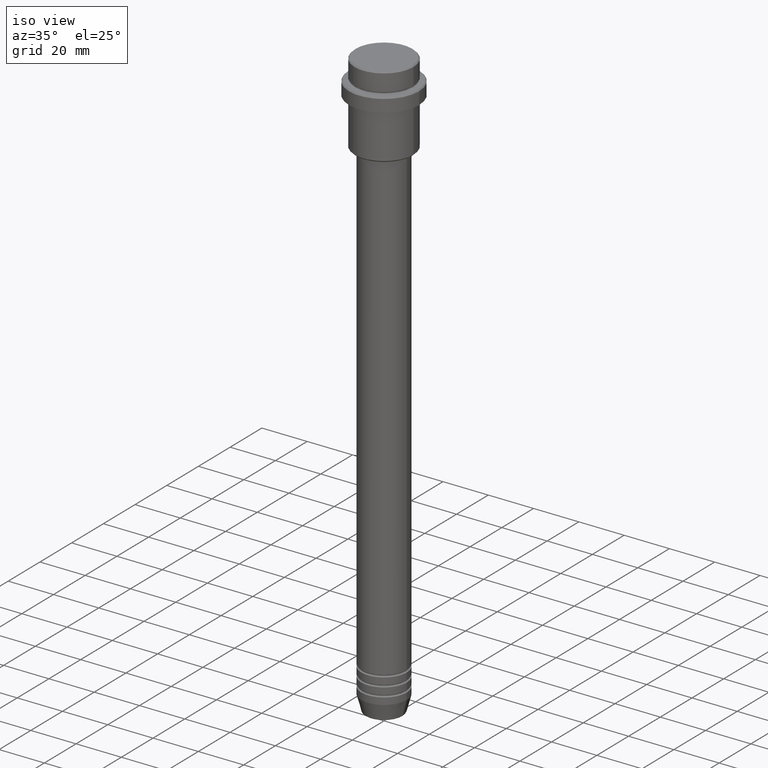
[diagram: clean part render]
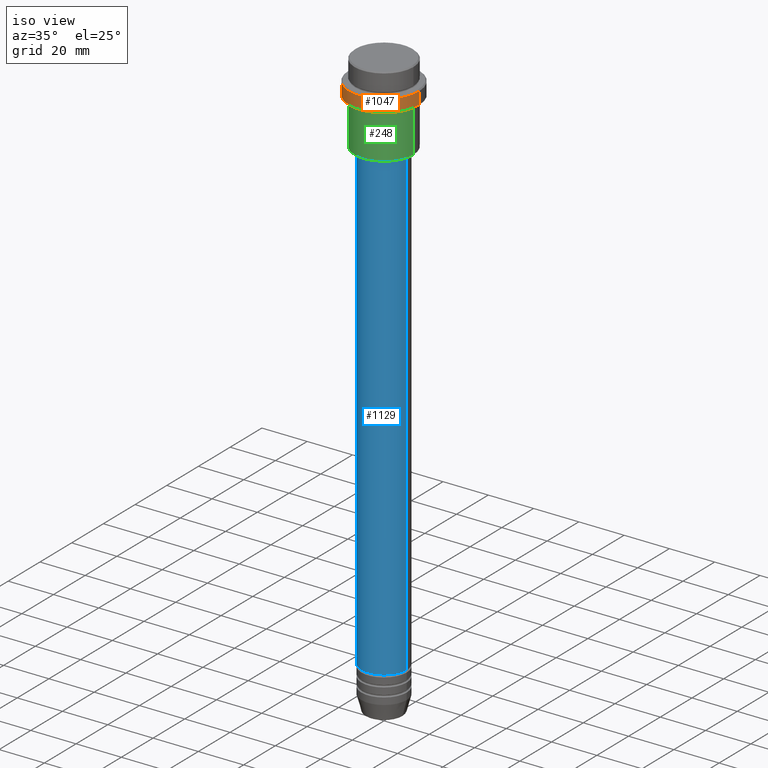
[diagram: same view with three faces highlighted in distinct colors, each labeled with its STEP entity id]
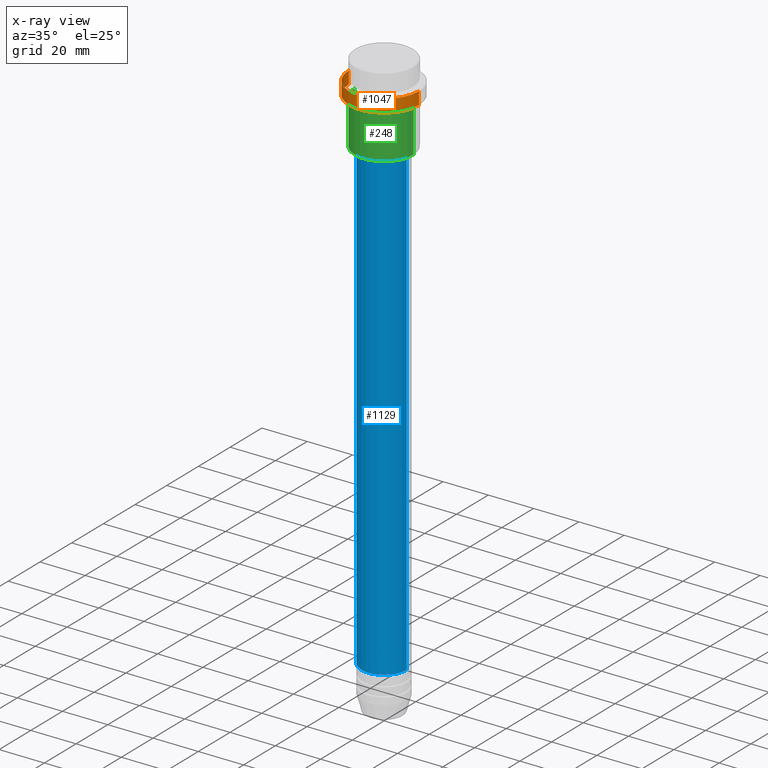
[diagram: x-ray of the same camera — body ghosted, the three highlighted faces saturated]
A machine part, iso view with three faces highlighted in distinct colors.
The next image is the same camera in x-ray (body ghosted, the three faces saturated) — at least one of them is partly hidden behind the body in this view.
Their STEP definitions:

[orange] entity #1047 — the highlighted cylindrical surface (partial cylindrical patch) has radius 15.5 mm, axis along (-0, -0, 1).
#96 = EDGE_LOOP ( 'NONE', ( #1191, #839, #1043, #1379 ) ) ;
#267 = CARTESIAN_POINT ( 'NONE',  ( 15.50000000000000000, 0.000000000000000000, -15.00000000000000000 ) ) ;
#305 = AXIS2_PLACEMENT_3D ( 'NONE', #672, #1247, #789 ) ;
#319 = EDGE_CURVE ( 'NONE', #1301, #425, #1221, .T. ) ;
#374 = FACE_OUTER_BOUND ( 'NONE', #96, .T. ) ;
#425 = VERTEX_POINT ( 'NONE', #1204 ) ;
#464 = CARTESIAN_POINT ( 'NONE',  ( -15.50000000000000000, 1.898202538678397557E-15, 0.000000000000000000 ) ) ;
#510 = AXIS2_PLACEMENT_3D ( 'NONE', #887, #1338, #696 ) ;
#566 = DIRECTION ( 'NONE',  ( -0.000000000000000000, -0.000000000000000000, 1.000000000000000000 ) ) ;
#639 = VECTOR ( 'NONE', #566, 1000.000000000000000 ) ;
#672 = CARTESIAN_POINT ( 'NONE',  ( 0.000000000000000000, 0.000000000000000000, -15.00000000000000000 ) ) ;
#683 = LINE ( 'NONE', #464, #1207 ) ;
#696 = DIRECTION ( 'NONE',  ( 1.000000000000000000, 0.000000000000000000, 0.000000000000000000 ) ) ;
#789 = DIRECTION ( 'NONE',  ( 1.000000000000000000, 0.000000000000000000, 0.000000000000000000 ) ) ;
#800 = EDGE_CURVE ( 'NONE', #425, #895, #813, .T. ) ;
#809 = CYLINDRICAL_SURFACE ( 'NONE', #510, 15.50000000000000000 ) ;
#813 = CIRCLE ( 'NONE', #1370, 15.50000000000000000 ) ;
#839 = ORIENTED_EDGE ( 'NONE', *, *, #1240, .T. ) ;
#841 = VERTEX_POINT ( 'NONE', #974 ) ;
#887 = CARTESIAN_POINT ( 'NONE',  ( 0.000000000000000000, 0.000000000000000000, 0.000000000000000000 ) ) ;
#895 = VERTEX_POINT ( 'NONE', #1192 ) ;
#933 = EDGE_CURVE ( 'NONE', #841, #895, #683, .T. ) ;
#974 = CARTESIAN_POINT ( 'NONE',  ( -15.50000000000000000, 1.898202538678397557E-15, -15.00000000000000000 ) ) ;
#1043 = ORIENTED_EDGE ( 'NONE', *, *, #319, .T. ) ;
#1047 = ADVANCED_FACE ( 'NONE', ( #374 ), #809, .T. ) ;
#1077 = DIRECTION ( 'NONE',  ( 1.000000000000000000, 0.000000000000000000, 0.000000000000000000 ) ) ;
#1111 = CARTESIAN_POINT ( 'NONE',  ( 15.50000000000000000, 0.000000000000000000, 0.000000000000000000 ) ) ;
#1170 = DIRECTION ( 'NONE',  ( 0.000000000000000000, 0.000000000000000000, -1.000000000000000000 ) ) ;
#1191 = ORIENTED_EDGE ( 'NONE', *, *, #933, .F. ) ;
#1192 = CARTESIAN_POINT ( 'NONE',  ( -15.50000000000000000, 1.898202538678397557E-15, -9.500000000000039080 ) ) ;
#1204 = CARTESIAN_POINT ( 'NONE',  ( 15.50000000000000000, 0.000000000000000000, -9.500000000000039080 ) ) ;
#1207 = VECTOR ( 'NONE', #1361, 1000.000000000000000 ) ;
#1221 = LINE ( 'NONE', #1111, #639 ) ;
#1240 = EDGE_CURVE ( 'NONE', #841, #1301, #1275, .T. ) ;
#1247 = DIRECTION ( 'NONE',  ( -0.000000000000000000, -0.000000000000000000, 1.000000000000000000 ) ) ;
#1275 = CIRCLE ( 'NONE', #305, 15.50000000000000000 ) ;
#1277 = CARTESIAN_POINT ( 'NONE',  ( 0.000000000000000000, 0.000000000000000000, -9.500000000000039080 ) ) ;
#1301 = VERTEX_POINT ( 'NONE', #267 ) ;
#1338 = DIRECTION ( 'NONE',  ( -0.000000000000000000, -0.000000000000000000, 1.000000000000000000 ) ) ;
#1361 = DIRECTION ( 'NONE',  ( -0.000000000000000000, -0.000000000000000000, 1.000000000000000000 ) ) ;
#1370 = AXIS2_PLACEMENT_3D ( 'NONE', #1277, #1170, #1077 ) ;
#1379 = ORIENTED_EDGE ( 'NONE', *, *, #800, .T. ) ;

[blue] entity #1129 — the highlighted cylindrical surface (edge-blend (fillet) strip) has radius 10 mm, axis along (-0, -0, 1).
#9 = DIRECTION ( 'NONE',  ( -0.000000000000000000, -0.000000000000000000, 1.000000000000000000 ) ) ;
#31 = CARTESIAN_POINT ( 'NONE',  ( 0.000000000000000000, 0.000000000000000000, 0.000000000000000000 ) ) ;
#81 = CARTESIAN_POINT ( 'NONE',  ( 10.00000000000000178, 0.000000000000000000, 0.000000000000000000 ) ) ;
#112 = CARTESIAN_POINT ( 'NONE',  ( -10.00000000000000178, 1.224646799147353454E-15, 0.000000000000000000 ) ) ;
#223 = VERTEX_POINT ( 'NONE', #978 ) ;
#230 = EDGE_CURVE ( 'NONE', #504, #421, #873, .T. ) ;
#232 = CARTESIAN_POINT ( 'NONE',  ( 0.000000000000000000, 0.000000000000000000, -241.9999999999998863 ) ) ;
#245 = DIRECTION ( 'NONE',  ( 1.000000000000000000, 0.000000000000000000, 0.000000000000000000 ) ) ;
#286 = CARTESIAN_POINT ( 'NONE',  ( -10.00000000000000000, 1.224646799147353256E-15, -241.9999999999998863 ) ) ;
#366 = DIRECTION ( 'NONE',  ( -0.000000000000000000, -0.000000000000000000, 1.000000000000000000 ) ) ;
#421 = VERTEX_POINT ( 'NONE', #674 ) ;
#469 = ORIENTED_EDGE ( 'NONE', *, *, #792, .T. ) ;
#488 = LINE ( 'NONE', #81, #1085 ) ;
#504 = VERTEX_POINT ( 'NONE', #286 ) ;
#549 = ORIENTED_EDGE ( 'NONE', *, *, #230, .T. ) ;
#551 = ORIENTED_EDGE ( 'NONE', *, *, #946, .F. ) ;
#574 = FACE_OUTER_BOUND ( 'NONE', #1042, .T. ) ;
#605 = VECTOR ( 'NONE', #9, 1000.000000000000000 ) ;
#632 = DIRECTION ( 'NONE',  ( 1.000000000000000000, 0.000000000000000000, 0.000000000000000000 ) ) ;
#650 = LINE ( 'NONE', #112, #605 ) ;
#674 = CARTESIAN_POINT ( 'NONE',  ( 10.00000000000000000, 0.000000000000000000, -241.9999999999998863 ) ) ;
#739 = AXIS2_PLACEMENT_3D ( 'NONE', #1229, #366, #245 ) ;
#745 = DIRECTION ( 'NONE',  ( -0.000000000000000000, -0.000000000000000000, 1.000000000000000000 ) ) ;
#792 = EDGE_CURVE ( 'NONE', #421, #945, #488, .T. ) ;
#845 = EDGE_CURVE ( 'NONE', #504, #223, #650, .T. ) ;
#873 = CIRCLE ( 'NONE', #1060, 10.00000000000000000 ) ;
#874 = ORIENTED_EDGE ( 'NONE', *, *, #845, .F. ) ;
#890 = CARTESIAN_POINT ( 'NONE',  ( 10.00000000000000178, 0.000000000000000000, -37.00000000000000711 ) ) ;
#911 = CYLINDRICAL_SURFACE ( 'NONE', #1297, 10.00000000000000178 ) ;
#945 = VERTEX_POINT ( 'NONE', #890 ) ;
#946 = EDGE_CURVE ( 'NONE', #223, #945, #1063, .T. ) ;
#978 = CARTESIAN_POINT ( 'NONE',  ( -10.00000000000000178, 1.224646799147353454E-15, -37.00000000000000711 ) ) ;
#1042 = EDGE_LOOP ( 'NONE', ( #874, #549, #469, #551 ) ) ;
#1060 = AXIS2_PLACEMENT_3D ( 'NONE', #232, #745, #632 ) ;
#1063 = CIRCLE ( 'NONE', #739, 10.00000000000000178 ) ;
#1085 = VECTOR ( 'NONE', #1396, 1000.000000000000000 ) ;
#1129 = ADVANCED_FACE ( 'NONE', ( #574 ), #911, .T. ) ;
#1229 = CARTESIAN_POINT ( 'NONE',  ( 0.000000000000000000, 0.000000000000000000, -37.00000000000000711 ) ) ;
#1297 = AXIS2_PLACEMENT_3D ( 'NONE', #31, #1346, #1359 ) ;
#1346 = DIRECTION ( 'NONE',  ( -0.000000000000000000, -0.000000000000000000, 1.000000000000000000 ) ) ;
#1359 = DIRECTION ( 'NONE',  ( 1.000000000000000000, 0.000000000000000000, 0.000000000000000000 ) ) ;
#1396 = DIRECTION ( 'NONE',  ( -0.000000000000000000, -0.000000000000000000, 1.000000000000000000 ) ) ;

[green] entity #248 — the highlighted cylindrical surface (edge-blend (fillet) strip) has radius 13 mm, axis along (-0, -0, 1).
#5 = ORIENTED_EDGE ( 'NONE', *, *, #145, .F. ) ;
#80 = AXIS2_PLACEMENT_3D ( 'NONE', #891, #361, #142 ) ;
#142 = DIRECTION ( 'NONE',  ( 1.000000000000000000, 0.000000000000000000, 0.000000000000000000 ) ) ;
#145 = EDGE_CURVE ( 'NONE', #932, #579, #764, .T. ) ;
#163 = CARTESIAN_POINT ( 'NONE',  ( 0.000000000000000000, 0.000000000000000000, -35.50000000000002842 ) ) ;
#246 = DIRECTION ( 'NONE',  ( -0.000000000000000000, -0.000000000000000000, 1.000000000000000000 ) ) ;
#248 = ADVANCED_FACE ( 'NONE', ( #857 ), #349, .T. ) ;
#278 = VECTOR ( 'NONE', #948, 1000.000000000000000 ) ;
#289 = EDGE_CURVE ( 'NONE', #849, #932, #1030, .T. ) ;
#331 = VECTOR ( 'NONE', #246, 1000.000000000000000 ) ;
#349 = CYLINDRICAL_SURFACE ( 'NONE', #80, 13.00000000000000000 ) ;
#360 = ORIENTED_EDGE ( 'NONE', *, *, #613, .T. ) ;
#361 = DIRECTION ( 'NONE',  ( -0.000000000000000000, -0.000000000000000000, 1.000000000000000000 ) ) ;
#399 = CARTESIAN_POINT ( 'NONE',  ( -13.00000000000000000, 1.592040838891559095E-15, -16.00000000000000000 ) ) ;
#414 = VERTEX_POINT ( 'NONE', #1324 ) ;
#442 = CARTESIAN_POINT ( 'NONE',  ( 13.00000000000000000, 0.000000000000000000, -16.00000000000000000 ) ) ;
#447 = CARTESIAN_POINT ( 'NONE',  ( -13.00000000000000000, 1.592040838891559095E-15, -35.50000000000002842 ) ) ;
#458 = CARTESIAN_POINT ( 'NONE',  ( -13.00000000000000000, 1.592040838891559095E-15, 0.000000000000000000 ) ) ;
#500 = EDGE_CURVE ( 'NONE', #849, #414, #622, .T. ) ;
#579 = VERTEX_POINT ( 'NONE', #442 ) ;
#613 = EDGE_CURVE ( 'NONE', #414, #579, #1125, .T. ) ;
#622 = CIRCLE ( 'NONE', #920, 13.00000000000000000 ) ;
#708 = ORIENTED_EDGE ( 'NONE', *, *, #500, .T. ) ;
#764 = CIRCLE ( 'NONE', #1395, 13.00000000000000000 ) ;
#825 = DIRECTION ( 'NONE',  ( -0.000000000000000000, -0.000000000000000000, 1.000000000000000000 ) ) ;
#849 = VERTEX_POINT ( 'NONE', #447 ) ;
#856 = ORIENTED_EDGE ( 'NONE', *, *, #289, .F. ) ;
#857 = FACE_OUTER_BOUND ( 'NONE', #1373, .T. ) ;
#866 = DIRECTION ( 'NONE',  ( -0.000000000000000000, -0.000000000000000000, 1.000000000000000000 ) ) ;
#891 = CARTESIAN_POINT ( 'NONE',  ( 0.000000000000000000, 0.000000000000000000, 0.000000000000000000 ) ) ;
#920 = AXIS2_PLACEMENT_3D ( 'NONE', #163, #825, #1270 ) ;
#932 = VERTEX_POINT ( 'NONE', #399 ) ;
#948 = DIRECTION ( 'NONE',  ( -0.000000000000000000, -0.000000000000000000, 1.000000000000000000 ) ) ;
#1030 = LINE ( 'NONE', #458, #331 ) ;
#1072 = DIRECTION ( 'NONE',  ( 1.000000000000000000, 0.000000000000000000, 0.000000000000000000 ) ) ;
#1076 = CARTESIAN_POINT ( 'NONE',  ( 13.00000000000000000, 0.000000000000000000, 0.000000000000000000 ) ) ;
#1125 = LINE ( 'NONE', #1076, #278 ) ;
#1211 = CARTESIAN_POINT ( 'NONE',  ( 0.000000000000000000, 0.000000000000000000, -16.00000000000000000 ) ) ;
#1270 = DIRECTION ( 'NONE',  ( -1.000000000000000000, 0.000000000000000000, 0.000000000000000000 ) ) ;
#1324 = CARTESIAN_POINT ( 'NONE',  ( 13.00000000000000000, 0.000000000000000000, -35.50000000000002842 ) ) ;
#1373 = EDGE_LOOP ( 'NONE', ( #856, #708, #360, #5 ) ) ;
#1395 = AXIS2_PLACEMENT_3D ( 'NONE', #1211, #866, #1072 ) ;